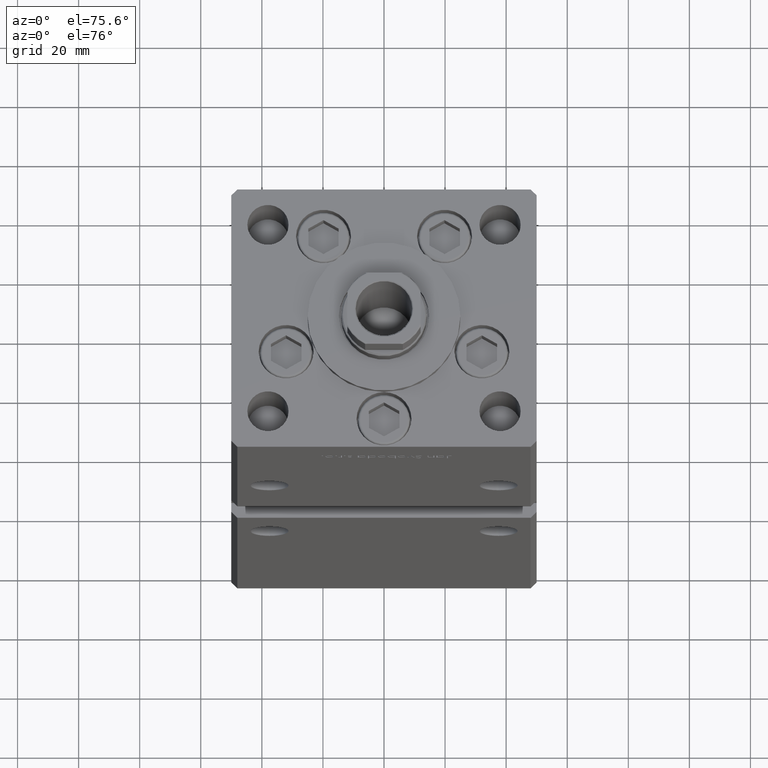
[diagram: clean part render]
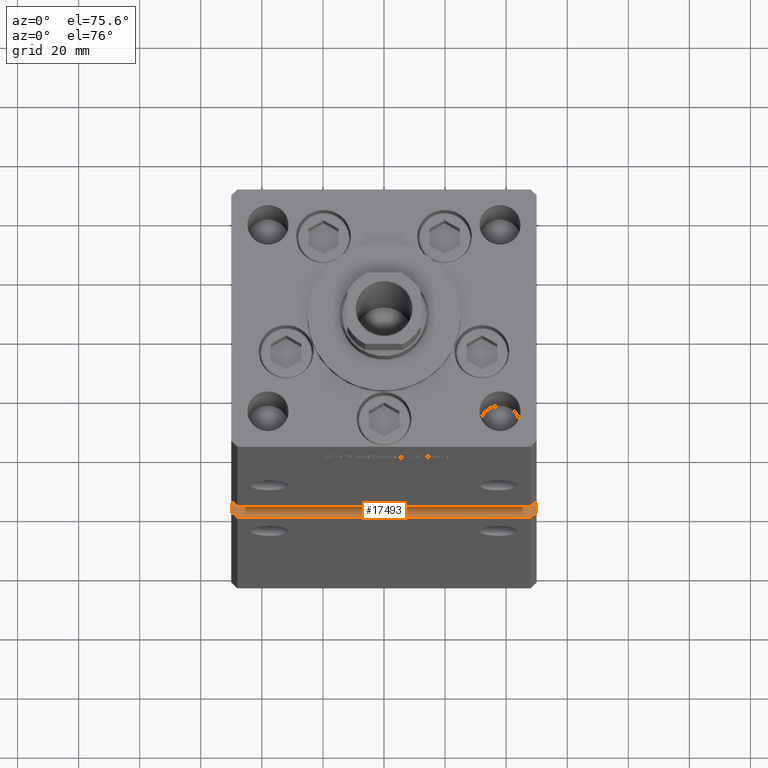
[diagram: same view with one face highlighted and labeled with its STEP entity id]
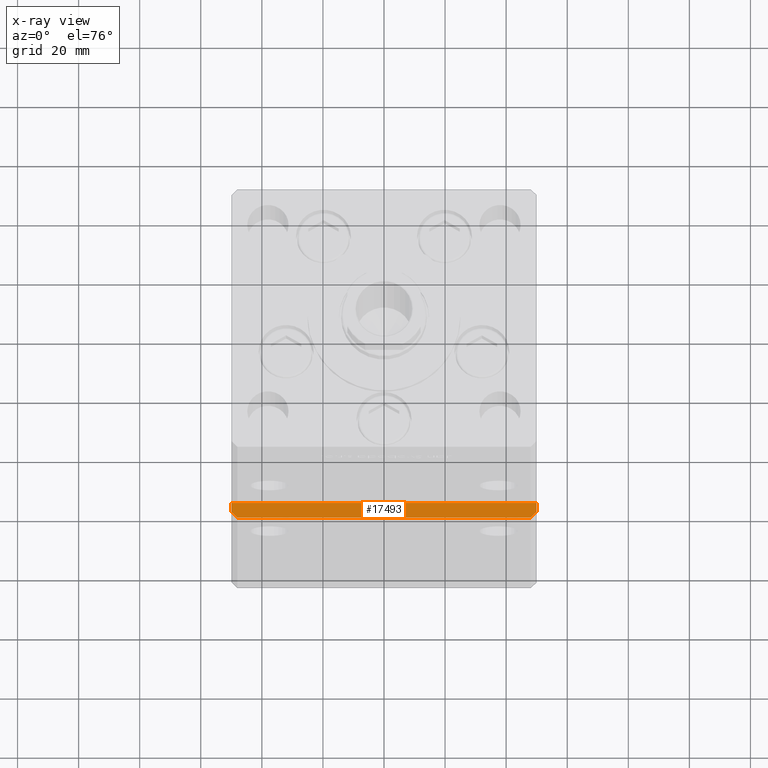
[diagram: x-ray of the same camera — body ghosted, the highlighted face saturated]
A machine part, auxiliary view. The second image highlights one B-rep face of the part: STEP entity #17493.
The next image is the same camera in x-ray: the body ghosted, the highlighted face saturated — about 0% of this face is hidden behind the body in this view.
In plain terms, the highlighted planar face has unit normal (0, 0, -1).
Its self-contained STEP definition (entity closure, byte-faithful):
#1782 = VERTEX_POINT ( 'NONE', #39679 ) ;
#1830 = EDGE_CURVE ( 'NONE', #53248, #37745, #20564, .T. ) ;
#4270 = LINE ( 'NONE', #37373, #14262 ) ;
#5155 = CARTESIAN_POINT ( 'NONE',  ( -49.99999999999998579, -38.50000000000000000, 74.00000000000000000 ) ) ;
#5524 = ORIENTED_EDGE ( 'NONE', *, *, #32938, .T. ) ;
#7039 = VERTEX_POINT ( 'NONE', #13520 ) ;
#10395 = DIRECTION ( 'NONE',  ( 1.000000000000000000, 0.000000000000000000, 0.000000000000000000 ) ) ;
#10953 = CARTESIAN_POINT ( 'NONE',  ( -49.99999999999998579, -41.49999999999999289, 74.00000000000000000 ) ) ;
#11443 = VERTEX_POINT ( 'NONE', #39236 ) ;
#13248 = FACE_OUTER_BOUND ( 'NONE', #28422, .T. ) ;
#13487 = LINE ( 'NONE', #30700, #26114 ) ;
#13520 = CARTESIAN_POINT ( 'NONE',  ( -47.99999999999998579, -43.50000000000000000, 74.00000000000000000 ) ) ;
#14262 = VECTOR ( 'NONE', #25542, 1000.000000000000000 ) ;
#14596 = AXIS2_PLACEMENT_3D ( 'NONE', #5155, #37996, #38257 ) ;
#15436 = ORIENTED_EDGE ( 'NONE', *, *, #46291, .F. ) ;
#16277 = EDGE_CURVE ( 'NONE', #35480, #53248, #30843, .T. ) ;
#16917 = EDGE_CURVE ( 'NONE', #11443, #37745, #48973, .T. ) ;
#17493 = ADVANCED_FACE ( 'NONE', ( #13248 ), #21603, .F. ) ;
#19790 = ORIENTED_EDGE ( 'NONE', *, *, #49906, .T. ) ;
#20564 = LINE ( 'NONE', #53100, #35872 ) ;
#21603 = PLANE ( 'NONE',  #14596 ) ;
#25542 = DIRECTION ( 'NONE',  ( -0.000000000000000000, -1.000000000000000000, -0.000000000000000000 ) ) ;
#26114 = VECTOR ( 'NONE', #47127, 1000.000000000000000 ) ;
#27364 = DIRECTION ( 'NONE',  ( -0.7071067811865474617, 0.7071067811865474617, 0.000000000000000000 ) ) ;
#28422 = EDGE_LOOP ( 'NONE', ( #5524, #37806, #38972, #31651, #19790, #15436 ) ) ;
#29239 = VECTOR ( 'NONE', #31491, 1000.000000000000114 ) ;
#30700 = CARTESIAN_POINT ( 'NONE',  ( -49.99999999999998579, -43.50000000000000000, 74.00000000000000000 ) ) ;
#30843 = LINE ( 'NONE', #47269, #42925 ) ;
#31391 = LINE ( 'NONE', #10953, #48757 ) ;
#31491 = DIRECTION ( 'NONE',  ( 0.7071067811865474617, 0.7071067811865474617, 0.000000000000000000 ) ) ;
#31651 = ORIENTED_EDGE ( 'NONE', *, *, #16277, .F. ) ;
#32938 = EDGE_CURVE ( 'NONE', #7039, #11443, #13487, .T. ) ;
#35480 = VERTEX_POINT ( 'NONE', #42187 ) ;
#35872 = VECTOR ( 'NONE', #40470, 1000.000000000000000 ) ;
#37373 = CARTESIAN_POINT ( 'NONE',  ( -49.99999999999998579, -38.50000000000000000, 74.00000000000000000 ) ) ;
#37745 = VERTEX_POINT ( 'NONE', #49960 ) ;
#37806 = ORIENTED_EDGE ( 'NONE', *, *, #16917, .T. ) ;
#37996 = DIRECTION ( 'NONE',  ( 0.000000000000000000, 0.000000000000000000, -1.000000000000000000 ) ) ;
#38257 = DIRECTION ( 'NONE',  ( -1.000000000000000000, 0.000000000000000000, -0.000000000000000000 ) ) ;
#38972 = ORIENTED_EDGE ( 'NONE', *, *, #1830, .F. ) ;
#39236 = CARTESIAN_POINT ( 'NONE',  ( 47.99999999999998579, -43.50000000000000000, 74.00000000000000000 ) ) ;
#39679 = CARTESIAN_POINT ( 'NONE',  ( -49.99999999999998579, -41.49999999999999289, 74.00000000000000000 ) ) ;
#40375 = CARTESIAN_POINT ( 'NONE',  ( 49.99999999999998579, -41.49999999999999289, 74.00000000000000000 ) ) ;
#40470 = DIRECTION ( 'NONE',  ( -0.000000000000000000, -1.000000000000000000, -0.000000000000000000 ) ) ;
#42187 = CARTESIAN_POINT ( 'NONE',  ( -49.99999999999998579, -38.50000000000000000, 74.00000000000000000 ) ) ;
#42925 = VECTOR ( 'NONE', #10395, 1000.000000000000000 ) ;
#46291 = EDGE_CURVE ( 'NONE', #7039, #1782, #31391, .T. ) ;
#47127 = DIRECTION ( 'NONE',  ( 1.000000000000000000, 0.000000000000000000, 0.000000000000000000 ) ) ;
#47269 = CARTESIAN_POINT ( 'NONE',  ( -49.99999999999998579, -38.50000000000000000, 74.00000000000000000 ) ) ;
#48757 = VECTOR ( 'NONE', #27364, 1000.000000000000114 ) ;
#48973 = LINE ( 'NONE', #40375, #29239 ) ;
#49906 = EDGE_CURVE ( 'NONE', #35480, #1782, #4270, .T. ) ;
#49960 = CARTESIAN_POINT ( 'NONE',  ( 49.99999999999998579, -41.49999999999999289, 74.00000000000000000 ) ) ;
#51230 = CARTESIAN_POINT ( 'NONE',  ( 49.99999999999998579, -38.49999999999999289, 74.00000000000000000 ) ) ;
#53100 = CARTESIAN_POINT ( 'NONE',  ( 49.99999999999998579, -38.50000000000000000, 74.00000000000000000 ) ) ;
#53248 = VERTEX_POINT ( 'NONE', #51230 ) ;